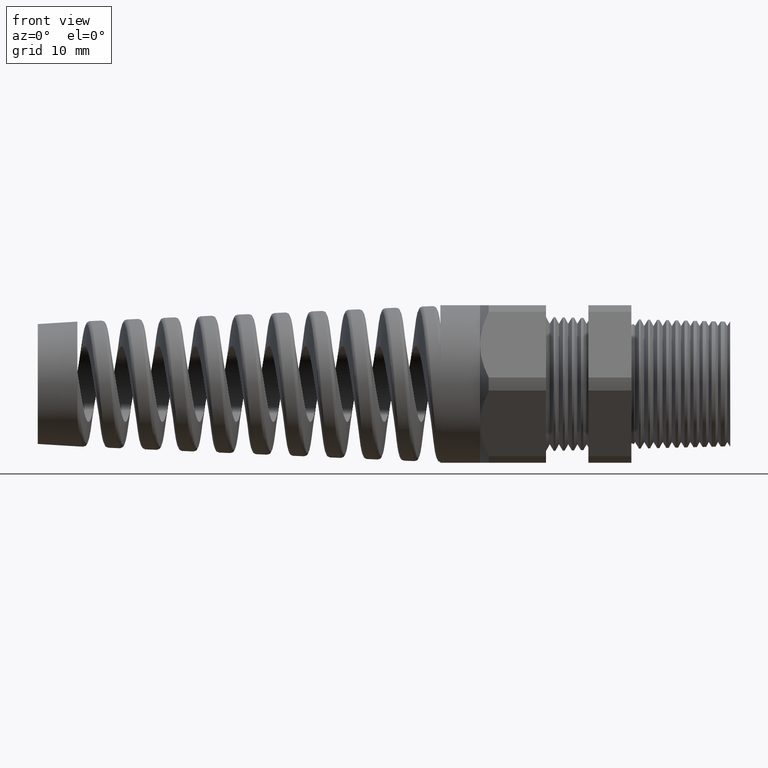
[diagram: clean part render]
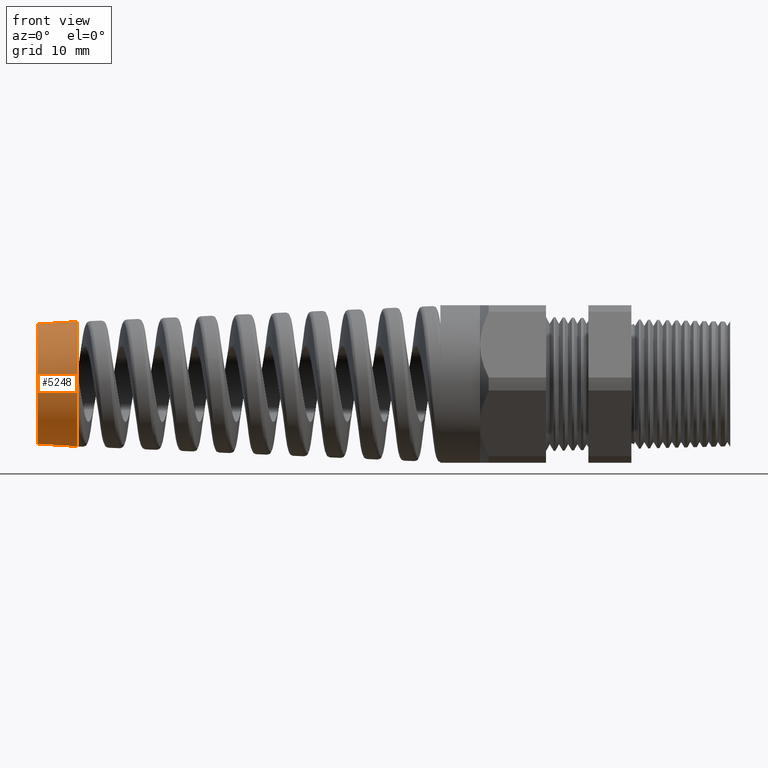
[diagram: same view with one face highlighted and labeled with its STEP entity id]
A machine part, front view. The second image highlights one B-rep face of the part: STEP entity #5248.
In plain terms, the highlighted conical surface has half-angle 3.5 deg.
Its self-contained STEP definition (entity closure, byte-faithful):
#111 = CARTESIAN_POINT ( 'NONE',  ( -3.613780000000000200, 0.0000000000000000000, 0.3720344495207377800 ) ) ;
#112 = DIRECTION ( 'NONE',  ( 0.0000000000000000000, 0.0000000000000000000, 1.000000000000000000 ) ) ;
#113 = DIRECTION ( 'NONE',  ( -1.000000000000000000, 0.0000000000000000000, 0.0000000000000000000 ) ) ;
#114 = CARTESIAN_POINT ( 'NONE',  ( -3.613780000000000200, 0.0000000000000000000, 0.0000000000000000000 ) ) ;
#115 = AXIS2_PLACEMENT_3D ( 'NONE', #114, #113, #112 ) ;
#116 = CIRCLE ( 'NONE', #115, 0.3720344495207377800 ) ;
#117 = DIRECTION ( 'NONE',  ( 0.9981347984218669200, -7.476289853398327700E-018, -0.06104853953485701200 ) ) ;
#118 = VECTOR ( 'NONE', #117, 39.37007874015748900 ) ;
#119 = CARTESIAN_POINT ( 'NONE',  ( -3.613780000000000200, -4.556107977781191300E-017, -0.3720344495207377800 ) ) ;
#120 = LINE ( 'NONE', #119, #118 ) ;
#121 = CARTESIAN_POINT ( 'NONE',  ( -3.850000472440945600, 0.0000000000000000000, 0.3575865864930643000 ) ) ;
#311 = DIRECTION ( 'NONE',  ( 0.0000000000000000000, 0.0000000000000000000, 1.000000000000000000 ) ) ;
#312 = DIRECTION ( 'NONE',  ( 1.000000000000000000, 0.0000000000000000000, 0.0000000000000000000 ) ) ;
#313 = CARTESIAN_POINT ( 'NONE',  ( -3.613780000000000200, 0.0000000000000000000, 0.0000000000000000000 ) ) ;
#314 = AXIS2_PLACEMENT_3D ( 'NONE', #313, #312, #311 ) ;
#317 = CONICAL_SURFACE ( 'NONE', #314, 0.3720344495207377800, 0.06108652381980166800 ) ;
#318 = FACE_OUTER_BOUND ( 'NONE', #5249, .T. ) ;
#497 = DIRECTION ( 'NONE',  ( 0.9981347984218669200, 0.0000000000000000000, 0.06104853953485701200 ) ) ;
#498 = VECTOR ( 'NONE', #497, 39.37007874015748900 ) ;
#499 = CARTESIAN_POINT ( 'NONE',  ( -3.613780000000000200, 0.0000000000000000000, 0.3720344495207377800 ) ) ;
#500 = LINE ( 'NONE', #499, #498 ) ;
#5179 = VERTEX_POINT ( 'NONE', #121 ) ;
#5180 = ORIENTED_EDGE ( 'NONE', *, *, #5181, .T. ) ;
#5181 = EDGE_CURVE ( 'NONE', #5252, #10898, #120, .T. ) ;
#5182 = ORIENTED_EDGE ( 'NONE', *, *, #16954, .F. ) ;
#5183 = ORIENTED_EDGE ( 'NONE', *, *, #5184, .T. ) ;
#5184 = EDGE_CURVE ( 'NONE', #16956, #5185, #116, .T. ) ;
#5185 = VERTEX_POINT ( 'NONE', #111 ) ;
#5196 = ORIENTED_EDGE ( 'NONE', *, *, #5197, .F. ) ;
#5197 = EDGE_CURVE ( 'NONE', #5179, #5185, #500, .T. ) ;
#5248 = ADVANCED_FACE ( 'NONE', ( #318 ), #317, .T. ) ;
#5249 = EDGE_LOOP ( 'NONE', ( #5250, #5180, #5182, #5183, #5196 ) ) ;
#5250 = ORIENTED_EDGE ( 'NONE', *, *, #5251, .F. ) ;
#5251 = EDGE_CURVE ( 'NONE', #5252, #5179, #7789, .T. ) ;
#5252 = VERTEX_POINT ( 'NONE', #7784 ) ;
#7784 = CARTESIAN_POINT ( 'NONE',  ( -3.850000472440945600, -4.467640331724391700E-017, -0.3575865864930643000 ) ) ;
#7785 = DIRECTION ( 'NONE',  ( 0.0000000000000000000, 0.0000000000000000000, 1.000000000000000000 ) ) ;
#7786 = DIRECTION ( 'NONE',  ( -1.000000000000000000, 0.0000000000000000000, 0.0000000000000000000 ) ) ;
#7787 = CARTESIAN_POINT ( 'NONE',  ( -3.850000472440945600, 0.0000000000000000000, 0.0000000000000000000 ) ) ;
#7788 = AXIS2_PLACEMENT_3D ( 'NONE', #7787, #7786, #7785 ) ;
#7789 = CIRCLE ( 'NONE', #7788, 0.3575865864930643000 ) ;
#10898 = VERTEX_POINT ( 'NONE', #12956 ) ;
#12956 = CARTESIAN_POINT ( 'NONE',  ( -3.613780000000000200, -4.556107977781191300E-017, -0.3720344495207377800 ) ) ;
#14357 = CARTESIAN_POINT ( 'NONE',  ( -3.613780000000000200, -0.3097289570580025200, -0.2061009577609003400 ) ) ;
#14360 = DIRECTION ( 'NONE',  ( 0.0000000000000000000, 0.0000000000000000000, -1.000000000000000000 ) ) ;
#14362 = DIRECTION ( 'NONE',  ( 1.000000000000000000, 0.0000000000000000000, 0.0000000000000000000 ) ) ;
#14364 = CARTESIAN_POINT ( 'NONE',  ( -3.613780000000000200, 0.0000000000000000000, 0.0000000000000000000 ) ) ;
#14365 = AXIS2_PLACEMENT_3D ( 'NONE', #14364, #14362, #14360 ) ;
#14367 = CIRCLE ( 'NONE', #14365, 0.3720344495207380500 ) ;
#16954 = EDGE_CURVE ( 'NONE', #16956, #10898, #14367, .T. ) ;
#16956 = VERTEX_POINT ( 'NONE', #14357 ) ;